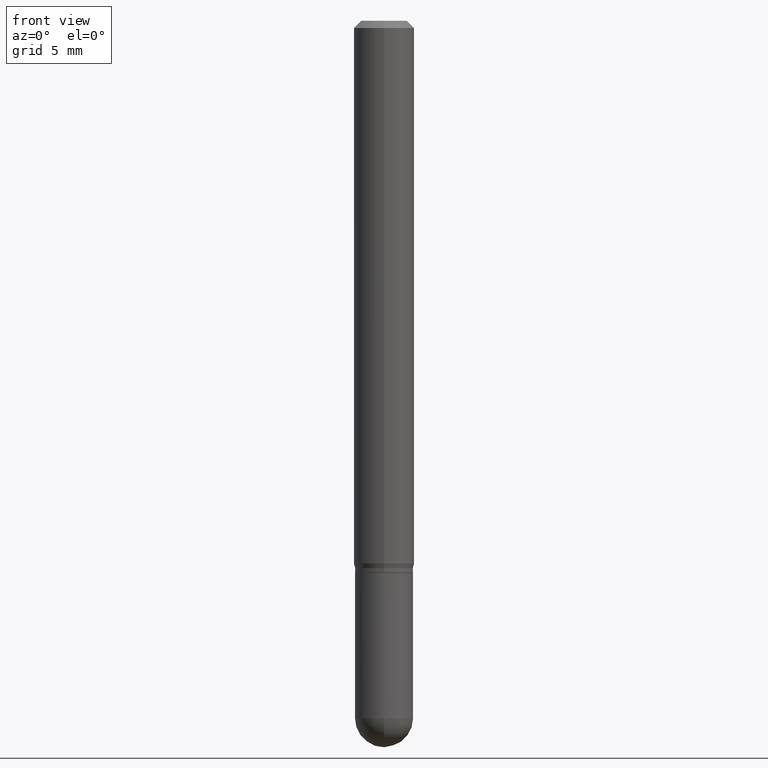
[diagram: clean part render]
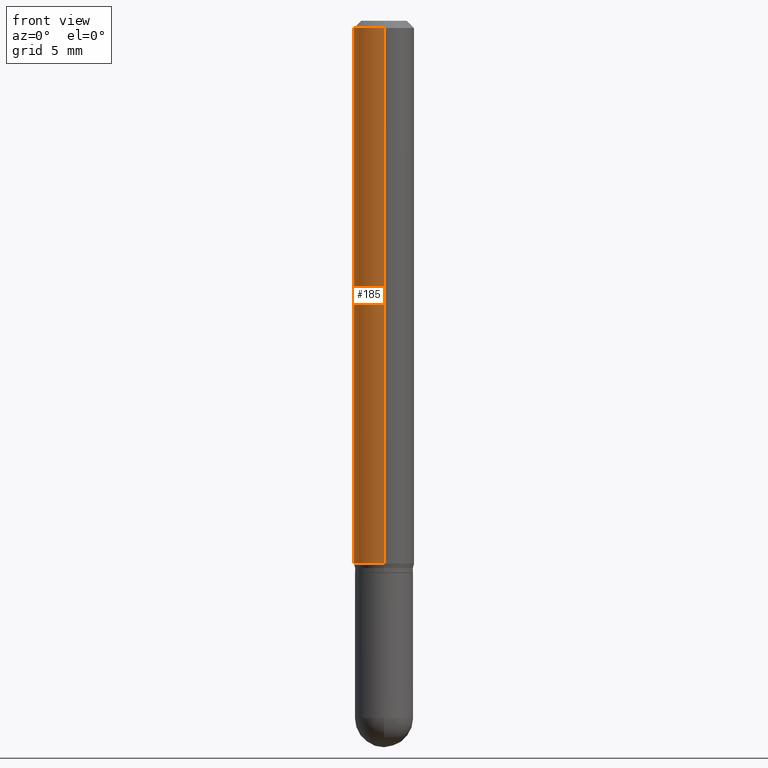
[diagram: same view with one face highlighted and labeled with its STEP entity id]
A machine part, front view. The second image highlights one B-rep face of the part: STEP entity #185.
In plain terms, the highlighted cylindrical surface (edge-blend (fillet) strip) has radius 1.5875 mm, axis along (-0, 0, 1).
Its self-contained STEP definition (entity closure, byte-faithful):
#15 = CIRCLE ( 'NONE', #23, 0.06250000000000000000 ) ;
#16 = DIRECTION ( 'NONE',  ( -2.445620671388312269E-29, 3.491263859228567350E-15, 1.000000000000000000 ) ) ;
#23 = AXIS2_PLACEMENT_3D ( 'NONE', #65, #383, #63 ) ;
#49 = VECTOR ( 'NONE', #95, 39.37007874015748143 ) ;
#50 = ORIENTED_EDGE ( 'NONE', *, *, #193, .F. ) ;
#55 = CARTESIAN_POINT ( 'NONE',  ( 0.000000000000000000, 0.000000000000000000, 0.000000000000000000 ) ) ;
#57 = VERTEX_POINT ( 'NONE', #215 ) ;
#62 = EDGE_CURVE ( 'NONE', #86, #402, #440, .T. ) ;
#63 = DIRECTION ( 'NONE',  ( -6.982962677686265922E-15, -1.000000000000000000, 3.483106191921935554E-15 ) ) ;
#65 = CARTESIAN_POINT ( 'NONE',  ( 3.668431007082470996E-31, -5.236895788842854378E-17, -0.01500000000000000812 ) ) ;
#86 = VERTEX_POINT ( 'NONE', #187 ) ;
#95 = DIRECTION ( 'NONE',  ( -2.445620671388312269E-29, 3.491263859228567350E-15, 1.000000000000000000 ) ) ;
#104 = DIRECTION ( 'NONE',  ( -6.982962677686265922E-15, -1.000000000000000000, 3.491263859228567350E-15 ) ) ;
#111 = VECTOR ( 'NONE', #16, 39.37007874015748143 ) ;
#125 = EDGE_LOOP ( 'NONE', ( #153, #473, #431, #50 ) ) ;
#146 = EDGE_CURVE ( 'NONE', #57, #235, #349, .T. ) ;
#153 = ORIENTED_EDGE ( 'NONE', *, *, #146, .F. ) ;
#174 = EDGE_CURVE ( 'NONE', #57, #86, #403, .T. ) ;
#185 = ADVANCED_FACE ( 'NONE', ( #467 ), #457, .T. ) ;
#187 = CARTESIAN_POINT ( 'NONE',  ( -4.364351673553640100E-16, -0.06250000000000388578, -1.120669872981078452 ) ) ;
#193 = EDGE_CURVE ( 'NONE', #235, #402, #15, .T. ) ;
#215 = CARTESIAN_POINT ( 'NONE',  ( 4.440892098500901277E-16, 0.06249999999999610728, -1.120669872981078896 ) ) ;
#235 = VERTEX_POINT ( 'NONE', #380 ) ;
#295 = DIRECTION ( 'NONE',  ( -6.982962677686265922E-15, -1.000000000000000000, 4.370956789862821150E-15 ) ) ;
#302 = DIRECTION ( 'NONE',  ( -2.445620671388312549E-29, 3.491263859228567350E-15, 1.000000000000000000 ) ) ;
#318 = CARTESIAN_POINT ( 'NONE',  ( -4.364351673553912750E-16, -0.06250000000000005551, -0.01499999999999979128 ) ) ;
#348 = CARTESIAN_POINT ( 'NONE',  ( 2.740733407164640186E-29, -3.912554225665108422E-15, -1.120669872981078674 ) ) ;
#349 = LINE ( 'NONE', #508, #49 ) ;
#373 = CARTESIAN_POINT ( 'NONE',  ( -4.364351673553916201E-16, -0.06250000000000000000, 2.182039912017854594E-16 ) ) ;
#380 = CARTESIAN_POINT ( 'NONE',  ( 4.440892098500901277E-16, 0.06249999999999995143, -0.01500000000000022669 ) ) ;
#383 = DIRECTION ( 'NONE',  ( -2.445620671388312549E-29, 3.491263859228567350E-15, 1.000000000000000000 ) ) ;
#386 = AXIS2_PLACEMENT_3D ( 'NONE', #55, #424, #104 ) ;
#402 = VERTEX_POINT ( 'NONE', #318 ) ;
#403 = CIRCLE ( 'NONE', #444, 0.06250000000000000000 ) ;
#424 = DIRECTION ( 'NONE',  ( -2.445620671388312549E-29, 3.491263859228567350E-15, 1.000000000000000000 ) ) ;
#431 = ORIENTED_EDGE ( 'NONE', *, *, #62, .T. ) ;
#440 = LINE ( 'NONE', #373, #111 ) ;
#444 = AXIS2_PLACEMENT_3D ( 'NONE', #348, #302, #295 ) ;
#457 = CYLINDRICAL_SURFACE ( 'NONE', #386, 0.06250000000000000000 ) ;
#467 = FACE_OUTER_BOUND ( 'NONE', #125, .T. ) ;
#473 = ORIENTED_EDGE ( 'NONE', *, *, #174, .T. ) ;
#508 = CARTESIAN_POINT ( 'NONE',  ( 4.440892098500625669E-16, 0.06250000000000000000, -2.182039912017854594E-16 ) ) ;